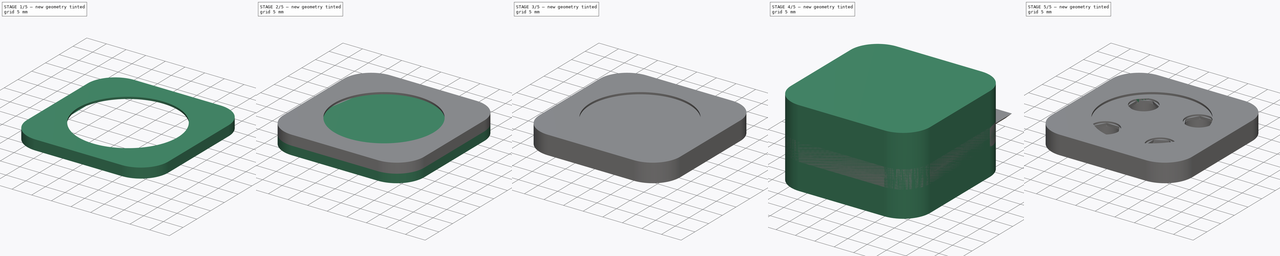
[diagram: build sequence overview — one tinted view per stage of 5, left to right]
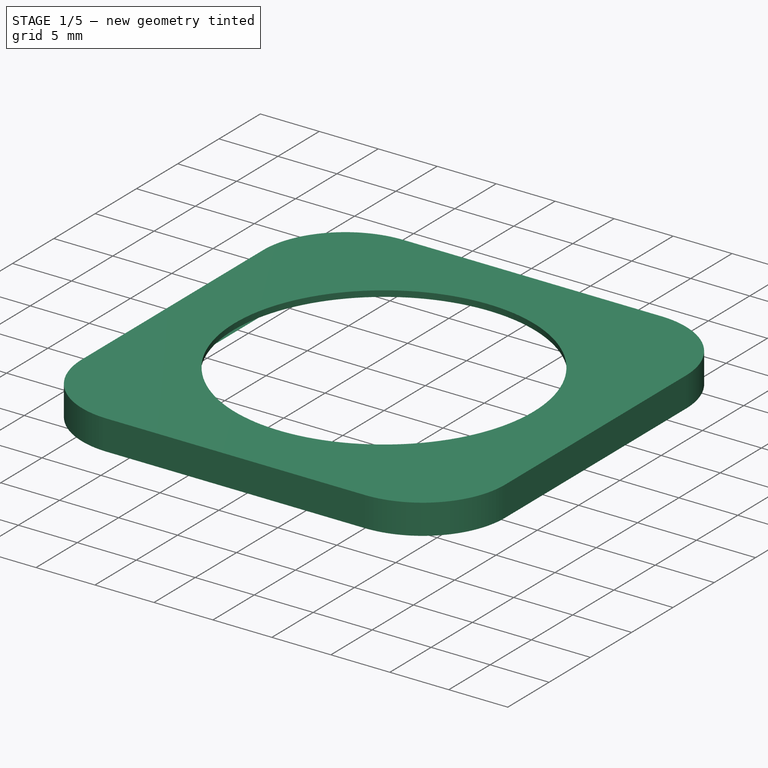
[diagram: stage 1 of 5 — iso view after this stage's code; geometry added in this stage tinted green]
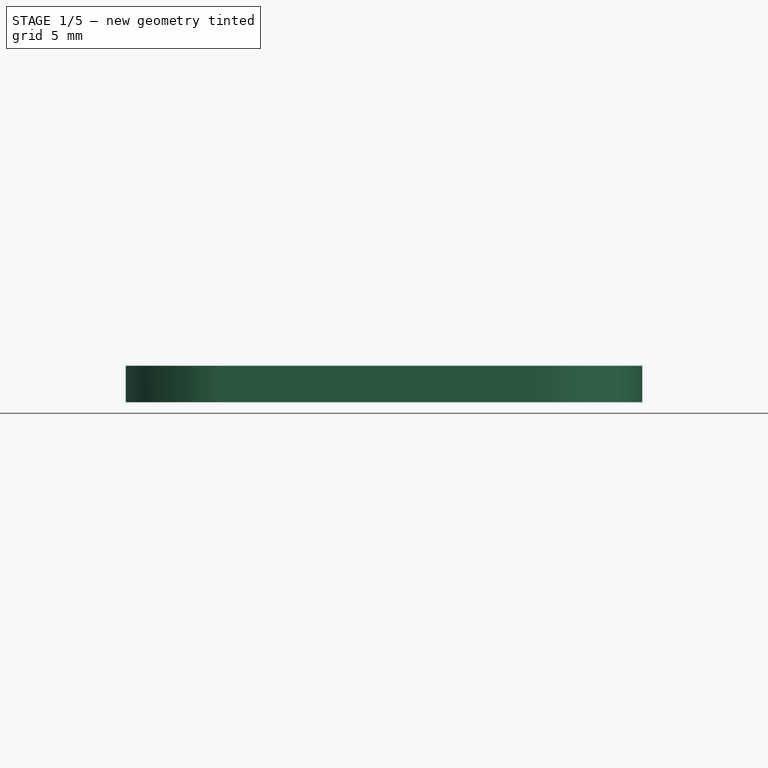
[diagram: stage 1 of 5 — front view after this stage's code; geometry added in this stage tinted green]
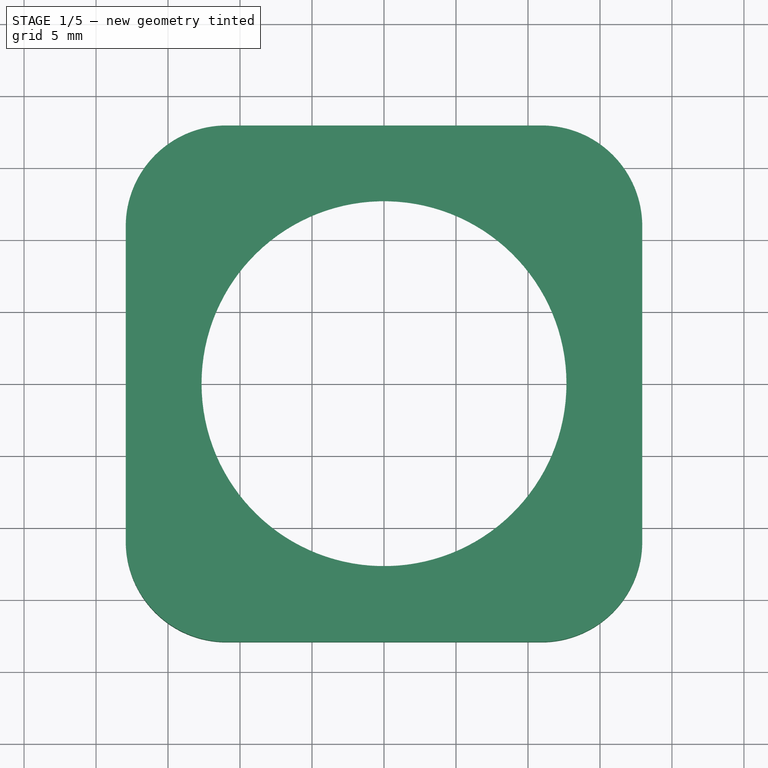
[diagram: stage 1 of 5 — top view after this stage's code; geometry added in this stage tinted green]
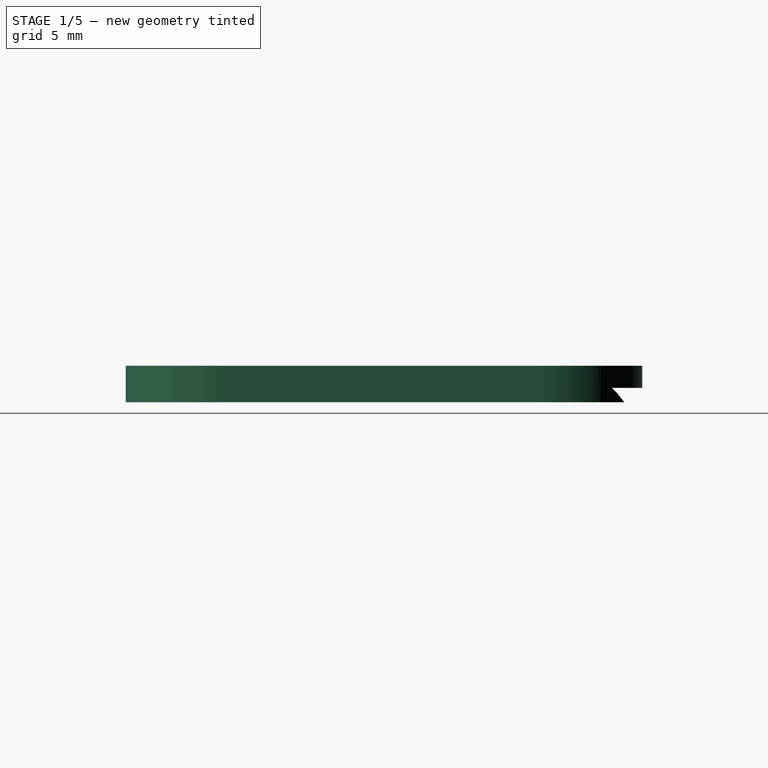
[diagram: stage 1 of 5 — right view after this stage's code; geometry added in this stage tinted green]
FCSTD DOCUMENT  (FreeCAD 1.0R39109 (Git))
Label: tiny-traffic-cone-bases
License: All rights reserved
LicenseURL: https://en.wikipedia.org/wiki/All_rights_reserved
objects: PartDesign::Body×9, Sketcher::SketchObject×8, PartDesign::Pad×5, PartDesign::Boolean×5, PartDesign::Pocket×5, PartDesign::FeatureBase×4, PartDesign::ShapeBinder×3, Part::Feature×1, Spreadsheet::Sheet×1, PartDesign::SubShapeBinder×1, PartDesign::PolarPattern×1
note: 80 computed .brp shape members not serialized (recipe doc carries the construction recipe); baked Part::Feature solids carry a one-line shape summary decoded from their .brp

FEATURE [PartDesign::Body] Body011  label="BaseOutline-Ref"
  AllowCompound = false
  Group = -> [Pad004,Sketch029]
  Origin = -> Origin004
  Tip = -> Pad004
FEATURE [PartDesign::ShapeBinder] ShapeBinder
  Support = -> [Sketch029]
  TraceSupport = false
FEATURE [PartDesign::Pad] Pad005
  Direction = (0,0,1)
  Length = 1.54
  Length2 = 1
  Profile = -> ShapeBinder
  Refine = true
  Suppressed = false
  Type = 4
  expr: Length = <<parameters>>.base_height - <<parameters>>.slide_height
  expr: Length2 = <<parameters>>.slide_height
FEATURE [PartDesign::Body] Body015  label="BaseInner-Stacking"
  AllowCompound = false
  Group = -> [Clone003,Boolean002]
  Origin = -> Origin008
  Tip = -> Boolean002
FEATURE [PartDesign::Pocket] Pocket
  BaseFeature = -> Pad005
  Direction = (0,0,-1)
  Length = 1.06
  Length2 = 5
  Profile = -> Sketch025
  ReferenceAxis = -> Sketch025 [N_Axis]
  Refine = true
  Suppressed = false
  TaperAngle = -45
  Type = 0
  expr: Length = <<parameters>>.slide_height + <<parameters>>.slide_fit
FEATURE [PartDesign::Body] Body018  label="BaseInner-Magnet-6x2"
  AllowCompound = false
  Group = -> [Binder,Pad009,Boolean004,Sketch,Pocket001,Sketch031,Pocket002,Sketch033,Pocket003,Sketch034,Pocket004,PolarPattern]
  Origin = -> Origin011
  Tip = -> PolarPattern
FEATURE [PartDesign::FeatureBase] Clone004
  BaseFeature = -> Body007
  Suppressed = false
FEATURE [PartDesign::Body] Body020
  AllowCompound = false
  Group = -> [Clone004]
  Origin = -> Origin013
  Tip = -> Clone004
FEATURE [PartDesign::Boolean] Boolean
  BaseFeature = -> Pocket
  Group = -> [Body020]
  Refine = true
  Suppressed = false
  Type = 1
  UsePlacement = true
FEATURE [PartDesign::Body] Body009  label="BaseOuter"
  AllowCompound = false
  Group = -> [ShapeBinder,Pad005,Sketch025,Pocket,Boolean]
  Origin = -> Origin002
  Tip = -> Boolean
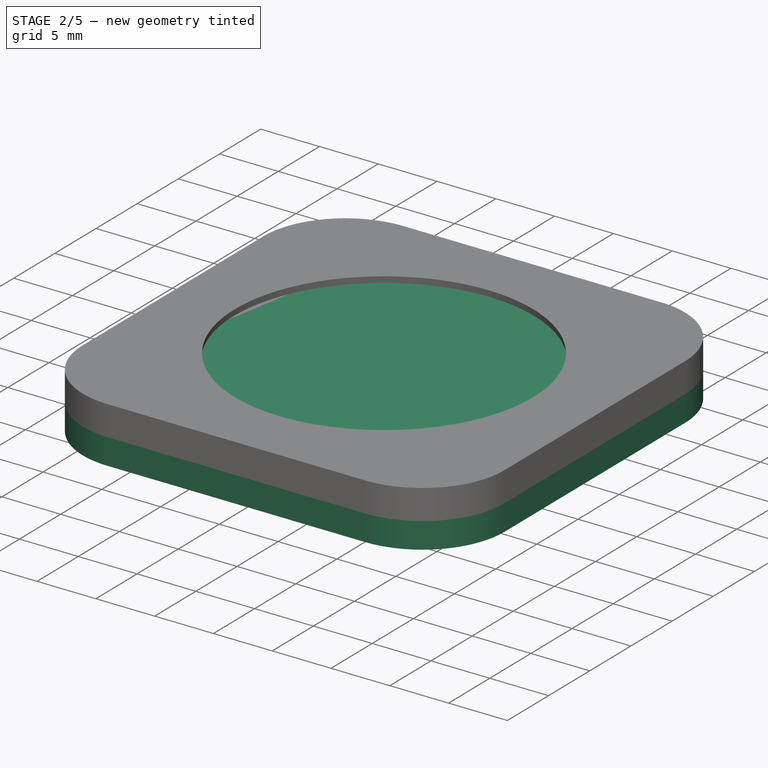
[diagram: stage 2 of 5 — iso view after this stage's code; geometry added in this stage tinted green]
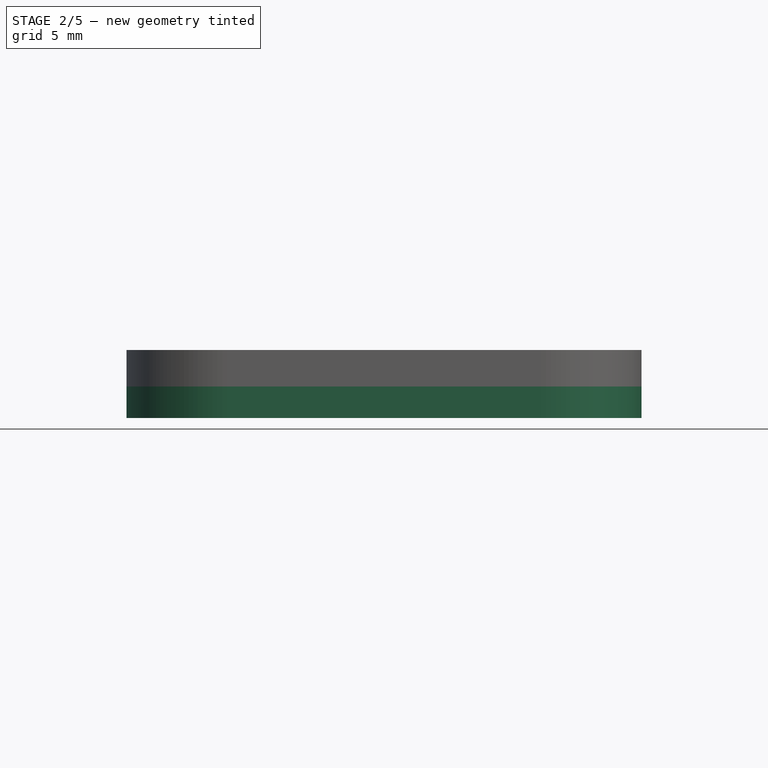
[diagram: stage 2 of 5 — front view after this stage's code; geometry added in this stage tinted green]
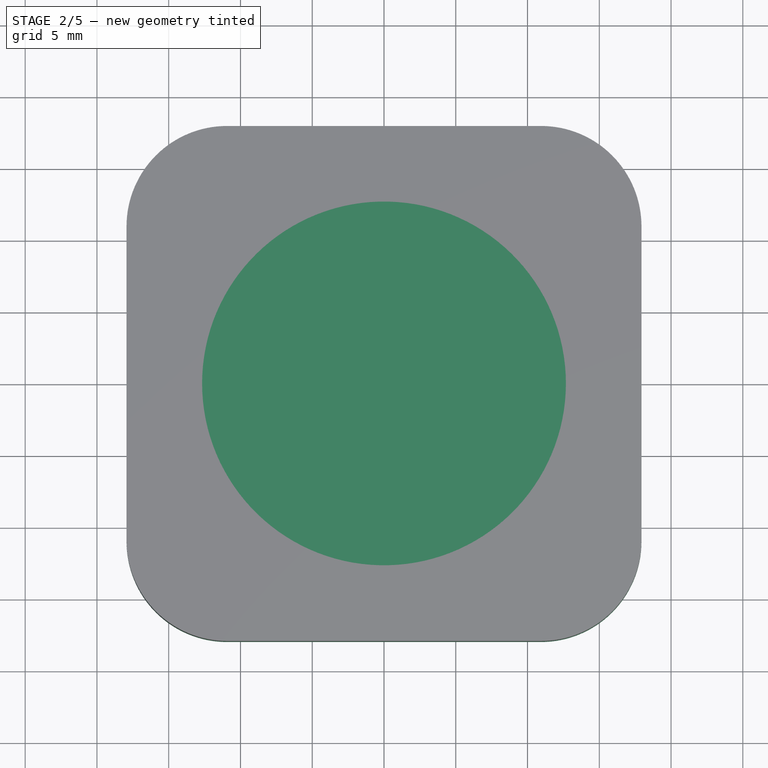
[diagram: stage 2 of 5 — top view after this stage's code; geometry added in this stage tinted green]
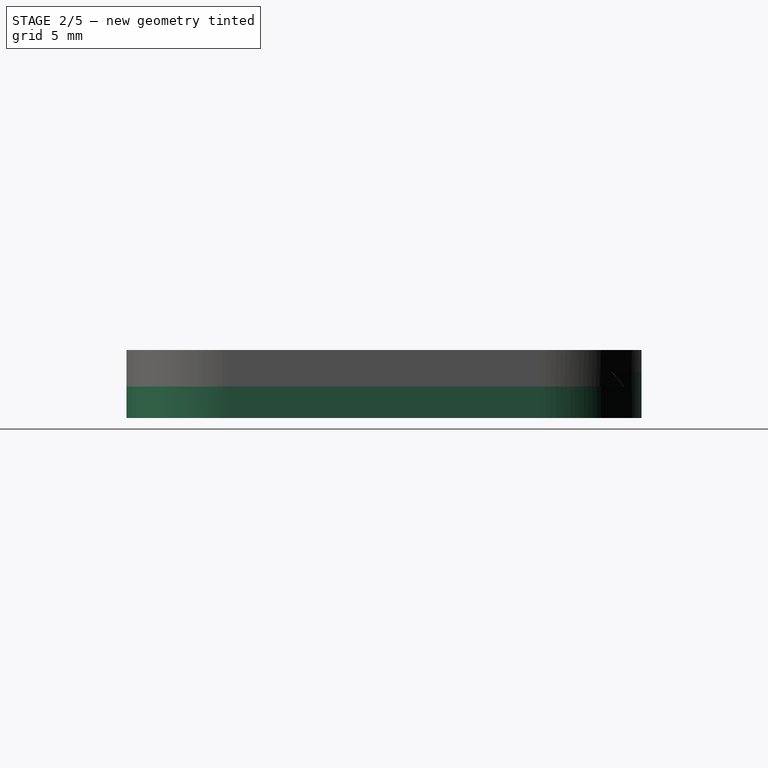
[diagram: stage 2 of 5 — right view after this stage's code; geometry added in this stage tinted green]
FEATURE [Part::Feature] Body007  label="BaseConeHole001"
  shape: bbox 30.43 x 30.43 x 76.12 mm, 14 faces (baked)
FEATURE [Spreadsheet::Sheet] Spreadsheet  label="parameters"
  cells = A1='fit values; B1='in mm; A2='base fit; B2(base_fit)=0.2; A3='slide fit; B3(slide_fit)=0.06; A5='printing; B5='in mm / deg; D5='ref; A6='cone base height; B6(cone_base_height)=0.8; A7='cone base width; B7(cone_base_width)=30; A8='base corner fillet; B8(base_corner_fillet)=7; A9='slide inner height; B9(slide_height)=1; A11='traffic cone; A12='base height; B12=1; C12(base_height)==B12 * 25.4 / 10; A13='base width; B13=14.125; C13(base_width)==B13 * 25.4 / 10; A15='base parameters; A16='penny thickness; B16(penny_thickness)=1.52; C16='ref; D16='https://www.usmint.gov/learn/coins-and-medals/circulating-coins/coin-specifications?srsltid=AfmBOoqPa8WdZfvSCUR2b_CkC8uXLPR4GtA1k-oykqEEjrXxY-uVOi0m; A17='penny diameter; B17(penny_diameter)=19.05; A18='penny fit; B18(penny_fit)=0.2; A19='penny count; B19(penny_count)=3; A21='magnet; B21='6x2
FEATURE [Sketcher::SketchObject] Sketch025
  ArcFitTolerance = 1e-06
  AttachmentSupport = -> [XY_Plane002]
  FullyConstrained = true
  MakeInternals = false
  MapMode = 5
  expr: Constraints[20] = <<parameters>>.base_width / 2 - 2
  sketch-geometry (8):
    g0: LineSegment StartX=15.9387 StartY=22 StartZ=0 EndX=15.9387 EndY=-10 EndZ=0
    g1: LineSegment StartX=15.9387 StartY=-10 StartZ=0 EndX=10 EndY=-15.9387 EndZ=0
    g2: LineSegment StartX=10 StartY=-15.9387 StartZ=0 EndX=-10 EndY=-15.9387 EndZ=0
    g3: LineSegment StartX=-10 StartY=-15.9387 StartZ=0 EndX=-15.9387 EndY=-10 EndZ=0
    g4: LineSegment StartX=-15.9387 StartY=-10 StartZ=0 EndX=-15.9387 EndY=22 EndZ=0
    g5: LineSegment StartX=-15.9387 StartY=22 StartZ=0 EndX=15.9387 EndY=22 EndZ=0
    g6: LineSegment [constr] StartX=0 StartY=0 StartZ=0 EndX=-15.9387 EndY=0 EndZ=0
    g7: LineSegment [constr] StartX=0 StartY=0 StartZ=0 EndX=0 EndY=-15.9387 EndZ=0
  constraints (23):
    c: Vertical(g0)
    c: Coincident(g1,g0)
    c: Coincident(g2,g1)
    c: Horizontal(g2)
    c: Coincident(g3,g2)
    c: Coincident(g4,g3)
    c: Vertical(g4)
    c: Coincident(g5,g4)
    c: Coincident(g5,g0)
    c: Symmetric(g4,g0,g-2)
    c: Coincident(g6,g-1)
    c: PointOnObject(g6,g4)
    c: Horizontal(g6)
    c: Coincident(g7,g6)
    c: PointOnObject(g7,g2)
    c: Vertical(g7)
    c: Equal(g6,g7)
    c: Perpendicular(g3,g1)
    c: Angle(g-1,g1) = 0.785398
    c: Equal(g1,g3)
    c: DistanceX(g0) = 15.9387
    c: DistanceY(g0) = 22
    c: DistanceX(g7,g1) = 10
FEATURE [PartDesign::ShapeBinder] ShapeBinder007
  Support = -> [Sketch025]
  TraceSupport = false
FEATURE [Sketcher::SketchObject] Sketch028
  ArcFitTolerance = 1e-06
  AttachmentSupport = -> [XY_Plane003]
  ExternalGeometry = -> [ShapeBinder007]
  FullyConstrained = true
  MakeInternals = false
  MapMode = 5
  expr: Constraints[17] = <<parameters>>.slide_fit
  sketch-geometry (8):
    g0: LineSegment StartX=-15.8787 StartY=22 StartZ=0 EndX=-15.8787 EndY=-9.96236 EndZ=0
    g1: LineSegment StartX=-15.8787 StartY=-9.96236 StartZ=0 EndX=-9.96236 EndY=-15.8787 EndZ=0
    g2: LineSegment StartX=-9.96236 StartY=-15.8787 StartZ=0 EndX=9.96236 EndY=-15.8787 EndZ=0
    g3: LineSegment StartX=9.96236 StartY=-15.8787 StartZ=0 EndX=15.8787 EndY=-9.96236 EndZ=0
    g4: LineSegment StartX=15.8787 StartY=-9.96236 StartZ=0 EndX=15.8787 EndY=22 EndZ=0
    g5: LineSegment [constr] StartX=0 StartY=0 StartZ=0 EndX=-15.9388 EndY=-10 EndZ=0
    g6: LineSegment [constr] StartX=0 StartY=0 StartZ=0 EndX=-10 EndY=-15.9387 EndZ=0
    g7: LineSegment StartX=-15.8787 StartY=22 StartZ=0 EndX=15.8787 EndY=22 EndZ=0
  constraints (21):
    c: PointOnObject(g0,g-3)
    c: Vertical(g0)
    c: Coincident(g1,g0)
    c: Coincident(g2,g1)
    c: Horizontal(g2)
    c: Coincident(g3,g2)
    c: Coincident(g4,g3)
    c: Vertical(g4)
    c: Equal(g0,g4)
    c: Parallel(g-7,g1)
    c: Parallel(g-5,g3)
    c: Symmetric(g4,g0,g-2)
    c: Coincident(g5,g-1)
    c: Coincident(g6,g5)
    c: Coincident(g6,g-7)
    c: PointOnObject(g1,g6)
    c: PointOnObject(g0,g5)
    c: DistanceX(g-8,g0) = 0.06
    c: Coincident(g5,g-8)
    c: Coincident(g7,g0)
    c: Coincident(g7,g4)
FEATURE [Sketcher::SketchObject] Sketch029  label="BaseOutlineSketch"
  ArcFitTolerance = 1e-06
  AttachmentSupport = -> [XY_Plane004]
  FullyConstrained = true
  MakeInternals = false
  MapMode = 5
  expr: Constraints[24] = <<parameters>>.base_corner_fillet
  expr: Constraints[37] = <<parameters>>.base_width
  sketch-geometry (20):
    g0: LineSegment [constr] StartX=-10.9387 StartY=10.9387 StartZ=0 EndX=-10.9387 EndY=-10.9388 EndZ=0
    g1: LineSegment [constr] StartX=-10.9387 StartY=-10.9388 StartZ=0 EndX=10.9387 EndY=-10.9388 EndZ=0
    g2: LineSegment [constr] StartX=10.9387 StartY=-10.9388 StartZ=0 EndX=10.9387 EndY=10.9387 EndZ=0
    g3: LineSegment [constr] StartX=10.9387 StartY=10.9387 StartZ=0 EndX=-10.9387 EndY=10.9387 EndZ=0
    g4: LineSegment [constr] StartX=-10.9387 StartY=10.9387 StartZ=0 EndX=-10.9387 EndY=17.9387 EndZ=0
    g5: LineSegment [constr] StartX=-10.9387 StartY=10.9387 StartZ=0 EndX=-17.9387 EndY=10.9387 EndZ=0
    g6: LineSegment [constr] StartX=10.9387 StartY=10.9387 StartZ=0 EndX=10.9387 EndY=17.9387 EndZ=0
    g7: LineSegment [constr] StartX=10.9387 StartY=10.9387 StartZ=0 EndX=17.9387 EndY=10.9387 EndZ=0
    g8: LineSegment [constr] StartX=-10.9387 StartY=-10.9388 StartZ=0 EndX=-17.9387 EndY=-10.9388 EndZ=0
    g9: LineSegment [constr] StartX=-10.9387 StartY=-10.9388 StartZ=0 EndX=-10.9387 EndY=-17.9388 EndZ=0
    g10: LineSegment [constr] StartX=10.9387 StartY=-10.9388 StartZ=0 EndX=10.9387 EndY=-17.9388 EndZ=0
    g11: LineSegment [constr] StartX=10.9387 StartY=-10.9388 StartZ=0 EndX=17.9387 EndY=-10.9388 EndZ=0
    g12: LineSegment StartX=-10.9387 StartY=17.9387 StartZ=0 EndX=10.9387 EndY=17.9387 EndZ=0
    g13: LineSegment StartX=-17.9387 StartY=10.9387 StartZ=0 EndX=-17.9387 EndY=-10.9388 EndZ=0
    g14: LineSegment StartX=-10.9387 StartY=-17.9388 StartZ=0 EndX=10.9387 EndY=-17.9388 EndZ=0
    g15: LineSegment StartX=17.9387 StartY=10.9387 StartZ=0 EndX=17.9387 EndY=-10.9388 EndZ=0
    g16: ArcOfCircle CenterX=-10.9387 CenterY=10.9387 CenterZ=0 NormalX=0 NormalY=0 NormalZ=1 AngleXU=0 Radius=7 StartAngle=1.5708 EndAngle=3.14159
    g17: ArcOfCircle CenterX=10.9387 CenterY=10.9387 CenterZ=0 NormalX=0 NormalY=0 NormalZ=1 AngleXU=0 Radius=7 StartAngle=0 EndAngle=1.5708
    g18: ArcOfCircle CenterX=10.9387 CenterY=-10.9388 CenterZ=0 NormalX=0 NormalY=0 NormalZ=1 AngleXU=0 Radius=7 StartAngle=4.71239 EndAngle=6.28319
    g19: ArcOfCircle CenterX=-10.9387 CenterY=-10.9388 CenterZ=0 NormalX=0 NormalY=0 NormalZ=1 AngleXU=0 Radius=7 StartAngle=3.14159 EndAngle=4.71239
  constraints (51):
    c: Coincident(g0,g1)
    c: Coincident(g1,g2)
    c: Coincident(g2,g3)
    c: Coincident(g3,g0)
    c: Vertical(g0)
    c: Vertical(g2)
    c: Horizontal(g1)
    c: Horizontal(g3)
    c: Coincident(g4,g0)
    c: Vertical(g4)
    c: Coincident(g5,g0)
    c: Horizontal(g5)
    c: Coincident(g6,g2)
    c: Coincident(g7,g2)
    c: Horizontal(g7)
    c: Vertical(g6)
    c: Coincident(g8,g0)
    c: Horizontal(g8)
    c: Coincident(g9,g0)
    c: Vertical(g9)
    c: Coincident(g10,g1)
    c: Vertical(g10)
    c: Coincident(g11,g1)
    c: Horizontal(g11)
    c: DistanceX(g8,g8) = 7
    c: Coincident(g12,g4)
    c: Coincident(g12,g6)
    c: Horizontal(g12)
    c: Coincident(g13,g5)
    c: Coincident(g13,g8)
    c: Vertical(g13)
    c: Coincident(g14,g9)
    c: Coincident(g14,g10)
    c: Coincident(g15,g7)
    c: Coincident(g15,g11)
    c: Vertical(g15)
    c: Equal(g14,g15)
    c: DistanceY(g9,g4) = 35.8775
    c: Symmetric(g8,g7,g-1)
    c: Coincident(g18,g1)
    c: Coincident(g18,g11)
    c: Coincident(g18,g10)
    c: Coincident(g8,g19)
    c: Coincident(g9,g19)
    c: Coincident(g5,g16)
    c: Coincident(g4,g16)
    c: Coincident(g6,g17)
    c: Coincident(g7,g17)
    c: Coincident(g2,g17)
    c: Coincident(g0,g19)
    c: Coincident(g0,g16)
FEATURE [PartDesign::Pad] Pad004
  Direction = (0,0,1)
  Length = 10
  Length2 = 10
  Profile = -> Sketch029
  ReferenceAxis = -> Sketch029 [N_Axis]
  Refine = true
  Suppressed = false
  Type = 4
FEATURE [PartDesign::SubShapeBinder] Binder  label="Binder-BaseOutline"
  BindCopyOnChange = 0
  BindMode = 0
  ClaimChildren = false
  Context = -> Body018 [Binder.]
  Fuse = false
  MakeFace = true
  OffsetFill = false
  OffsetIntersection = false
  OffsetJoinType = 0
  OffsetOpenResult = false
  PartialLoad = false
  Placement = pos=(0,0,-1) rot=(0,0,1;0rad)
  Refine = true
  Relative = true
  Support = -> [Body011[Sketch029.]]
  _Version = 2
FEATURE [PartDesign::Pad] Pad009
  Direction = (0,0,1)
  Length = 2.2
  Length2 = 10
  Placement = pos=(0,0,-1) rot=(0,0,1;0rad)
  Profile = -> Binder
  Refine = true
  Reversed = true
  Suppressed = false
  Type = 0
FEATURE [Sketcher::SketchObject] Sketch
  ArcFitTolerance = 1e-06
  AttachmentSupport = -> [Pad009]
  FullyConstrained = true
  MakeInternals = false
  MapMode = 5
  Placement = pos=(0,0,-3.2) rot=(1,0,0;3.14159rad)
  sketch-geometry (3):
    g0: Circle CenterX=-7 CenterY=7 CenterZ=0 NormalX=0 NormalY=0 NormalZ=1 AngleXU=0 Radius=1
    g1: LineSegment [constr] StartX=-7 StartY=7 StartZ=0 EndX=-7 EndY=0 EndZ=0
    g2: LineSegment [constr] StartX=-7 StartY=7 StartZ=0 EndX=0 EndY=7 EndZ=0
  constraints (9):
    c: Diameter(g0) = 2
    c: Coincident(g1,g0)
    c: PointOnObject(g1,g-1)
    c: Vertical(g1)
    c: Coincident(g2,g0)
    c: PointOnObject(g2,g-2)
    c: Horizontal(g2)
    c: Equal(g2,g1)
    c: Distance(g0,g1) = 7
FEATURE [PartDesign::ShapeBinder] ShapeBinder008
  Support = -> [Sketch025]
  TraceSupport = false
FEATURE [Sketcher::SketchObject] Sketch032
  ArcFitTolerance = 1e-06
  AttachmentSupport = -> [XY_Plane003]
  ExternalGeometry = -> [ShapeBinder008]
  FullyConstrained = true
  MakeInternals = false
  MapMode = 5
  expr: Constraints[17] = <<parameters>>.slide_fit
  sketch-geometry (8):
    g0: LineSegment StartX=-15.8787 StartY=22 StartZ=0 EndX=-15.8787 EndY=-9.96236 EndZ=0
    g1: LineSegment StartX=-15.8787 StartY=-9.96236 StartZ=0 EndX=-9.96236 EndY=-15.8787 EndZ=0
    g2: LineSegment StartX=-9.96236 StartY=-15.8787 StartZ=0 EndX=9.96236 EndY=-15.8787 EndZ=0
    g3: LineSegment StartX=9.96236 StartY=-15.8787 StartZ=0 EndX=15.8787 EndY=-9.96236 EndZ=0
    g4: LineSegment StartX=15.8787 StartY=-9.96236 StartZ=0 EndX=15.8787 EndY=22 EndZ=0
    g5: LineSegment [constr] StartX=0 StartY=0 StartZ=0 EndX=-15.9388 EndY=-10 EndZ=0
    g6: LineSegment [constr] StartX=0 StartY=0 StartZ=0 EndX=-10 EndY=-15.9387 EndZ=0
    g7: LineSegment StartX=-15.8787 StartY=22 StartZ=0 EndX=15.8787 EndY=22 EndZ=0
  constraints (21):
    c: PointOnObject(g0,g-3)
    c: Vertical(g0)
    c: Coincident(g1,g0)
    c: Coincident(g2,g1)
    c: Horizontal(g2)
    c: Coincident(g3,g2)
    c: Coincident(g4,g3)
    c: Vertical(g4)
    c: Equal(g0,g4)
    c: Parallel(g-7,g1)
    c: Parallel(g-5,g3)
    c: Symmetric(g4,g0,g-2)
    c: Coincident(g5,g-1)
    c: Coincident(g6,g5)
    c: Coincident(g6,g-7)
    c: PointOnObject(g1,g6)
    c: PointOnObject(g0,g5)
    c: DistanceX(g-8,g0) = 0.06
    c: Coincident(g5,g-8)
    c: Coincident(g7,g0)
    c: Coincident(g7,g4)
FEATURE [PartDesign::Pad] Pad010
  Direction = (0,0,1)
  Length = 1
  Length2 = 10
  Profile = -> Sketch032
  ReferenceAxis = -> Sketch032 [N_Axis]
  Refine = true
  Reversed = true
  Suppressed = false
  TaperAngle = -45
  Type = 0
  expr: Length = <<parameters>>.slide_height
FEATURE [PartDesign::Boolean] Boolean003
  BaseFeature = -> Pad010
  Refine = true
  Suppressed = false
  Type = 2
  UsePlacement = true
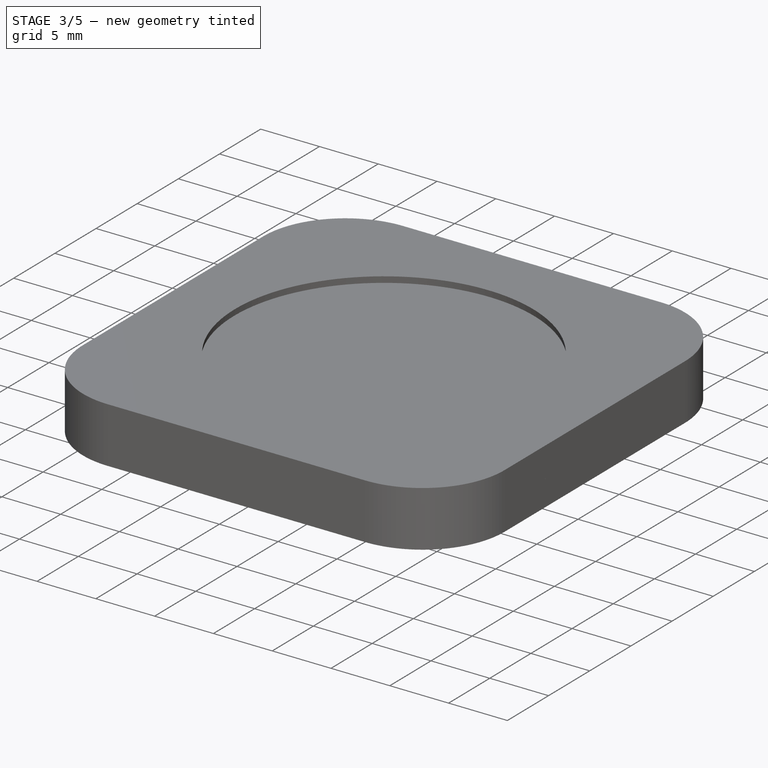
[diagram: stage 3 of 5 — iso view after this stage's code; geometry added in this stage tinted green]
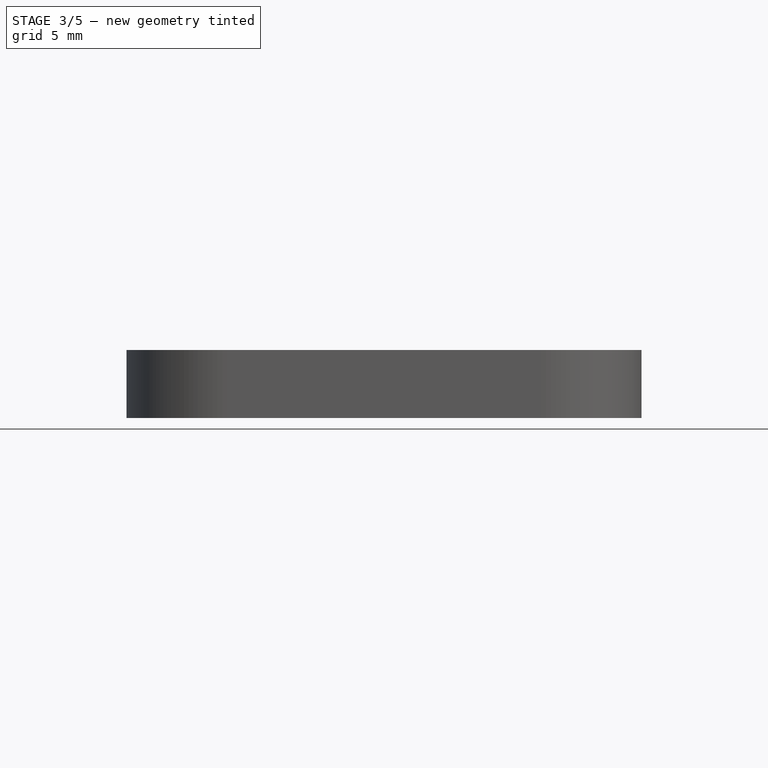
[diagram: stage 3 of 5 — front view after this stage's code; geometry added in this stage tinted green]
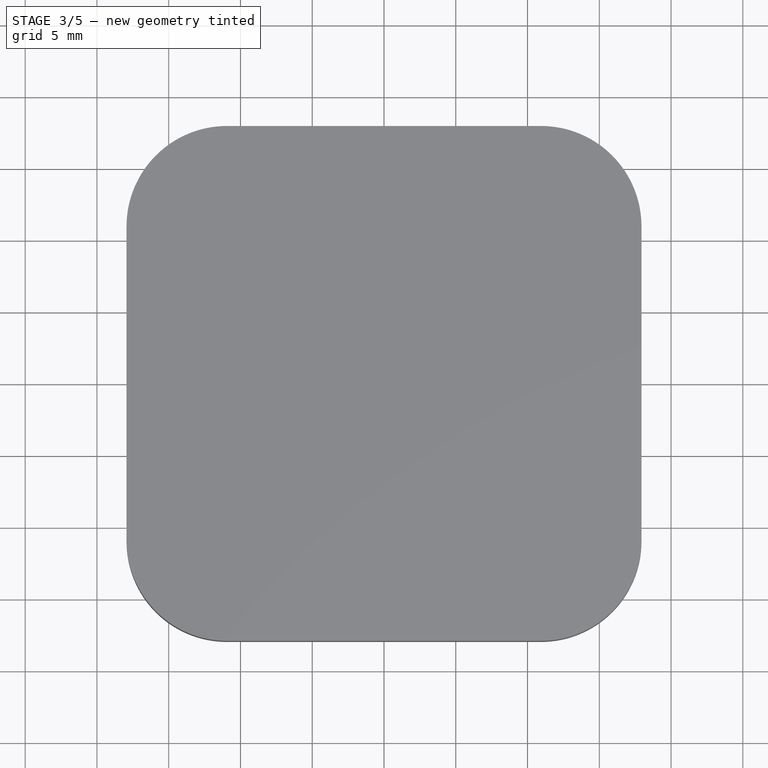
[diagram: stage 3 of 5 — top view after this stage's code; geometry added in this stage tinted green]
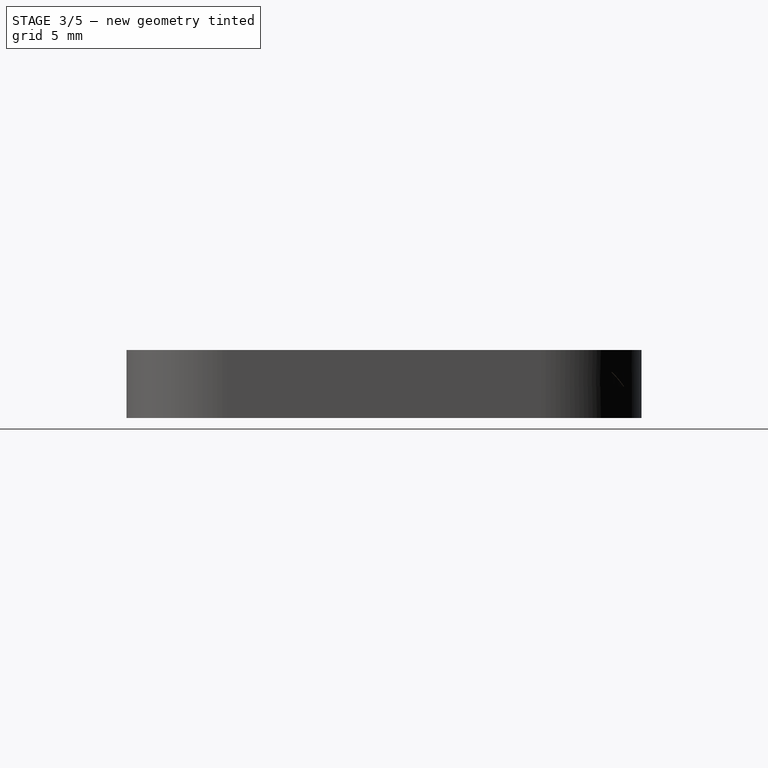
[diagram: stage 3 of 5 — right view after this stage's code; geometry added in this stage tinted green]
FEATURE [PartDesign::Body] Body019  label="BaseInner-Base001"
  AllowCompound = false
  Group = -> [ShapeBinder008,Sketch032,Pad010,Boolean003]
  Origin = -> Origin012
  Tip = -> Boolean003
FEATURE [PartDesign::Boolean] Boolean004
  BaseFeature = -> Pad009
  Group = -> [Body019]
  Refine = true
  Suppressed = false
  Type = 0
  UsePlacement = true
FEATURE [PartDesign::Pocket] Pocket001  label="bottomhole"
  BaseFeature = -> Boolean004
  Direction = (0,0,1)
  Length = 0.2
  Length2 = 5
  Profile = -> Sketch
  ReferenceAxis = -> Sketch [N_Axis]
  Refine = true
  Suppressed = false
  Type = 0
FEATURE [Sketcher::SketchObject] Sketch031
  ArcFitTolerance = 1e-06
  AttachmentSupport = -> [Pocket001]
  FullyConstrained = true
  MakeInternals = false
  MapMode = 5
  Placement = pos=(0,0,-3) rot=(1,0,0;3.14159rad)
  sketch-geometry (1):
    g0: Circle CenterX=-7 CenterY=7 CenterZ=0 NormalX=0 NormalY=0 NormalZ=1 AngleXU=0 Radius=3.15
  constraints (2):
    c: Coincident(g0,g-3)
    c: Diameter(g0) = 6.3
FEATURE [PartDesign::Pocket] Pocket002  label="magnethole001"
  BaseFeature = -> Pocket001
  Direction = (0,0,1)
  Length = 2
  Length2 = 5
  Profile = -> Sketch031
  ReferenceAxis = -> Sketch031 [N_Axis]
  Refine = true
  Suppressed = false
  Type = 0
FEATURE [Sketcher::SketchObject] Sketch033
  ArcFitTolerance = 1e-06
  AttachmentSupport = -> [Pocket002]
  ExternalGeometry = -> [Sketch031]
  FullyConstrained = true
  MakeInternals = false
  MapMode = 5
  Placement = pos=(0,0,-1) rot=(1,0,0;3.14159rad)
  sketch-geometry (7):
    g0: LineSegment StartX=-3.7091 StartY=7 StartZ=0 EndX=-5.35455 EndY=9.85 EndZ=0
    g1: LineSegment StartX=-5.35455 StartY=9.85 StartZ=0 EndX=-8.64545 EndY=9.85 EndZ=0
    g2: LineSegment StartX=-8.64545 StartY=9.85 StartZ=0 EndX=-10.2909 EndY=7 EndZ=0
    g3: LineSegment StartX=-10.2909 StartY=7 StartZ=0 EndX=-8.64545 EndY=4.15 EndZ=0
    g4: LineSegment StartX=-8.64545 StartY=4.15 StartZ=0 EndX=-5.35455 EndY=4.15 EndZ=0
    g5: LineSegment StartX=-5.35455 StartY=4.15 StartZ=0 EndX=-3.7091 EndY=7 EndZ=0
    g6: Circle [constr] CenterX=-7 CenterY=7 CenterZ=0 NormalX=0 NormalY=0 NormalZ=1 AngleXU=0 Radius=3.2909
  constraints (16):
    c: Coincident(g0,g1)
    c: Coincident(g1,g2)
    c: Coincident(g2,g3)
    c: Coincident(g3,g4)
    c: Coincident(g4,g5)
    c: Coincident(g5,g0)
    c: Equal(g0, g1-g5) x5
    c: PointOnObject(g0,g6)
    c: PointOnObject(g1,g6)
    c: PointOnObject(g2,g6)
    c: PointOnObject(g3,g6)
    c: PointOnObject(g4,g6)
    c: PointOnObject(g5,g6)
    c: Coincident(g6,g-3)
    c: Horizontal(g0,g6)
    c: Distance(g2,g0) = 5.7
FEATURE [PartDesign::Pocket] Pocket003  label="hexhole"
  BaseFeature = -> Pocket002
  Direction = (0,0,1)
  Length = 0.6
  Length2 = 5
  Profile = -> Sketch033
  ReferenceAxis = -> Sketch033 [N_Axis]
  Refine = true
  Suppressed = false
  Type = 0
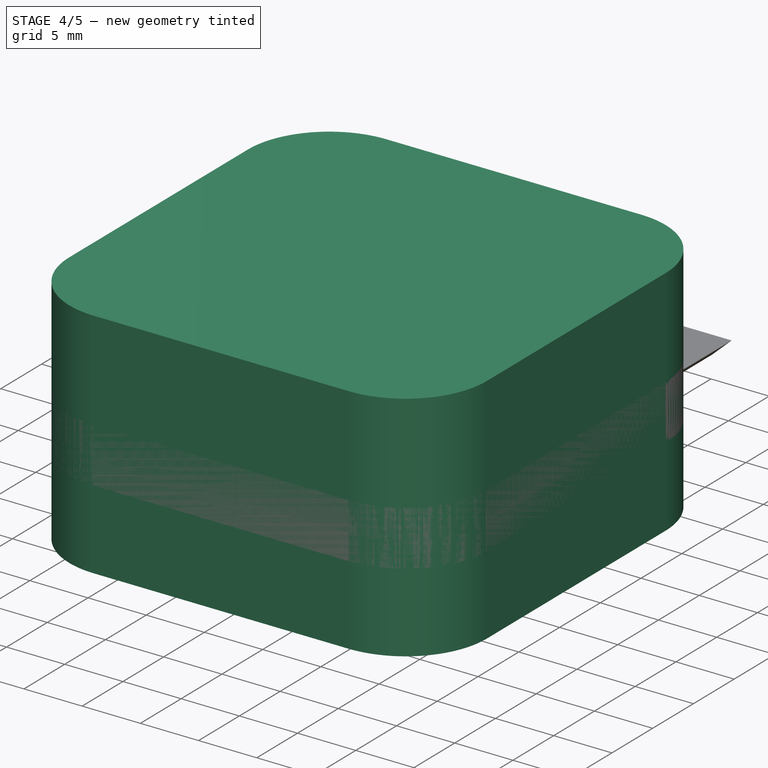
[diagram: stage 4 of 5 — iso view after this stage's code; geometry added in this stage tinted green]
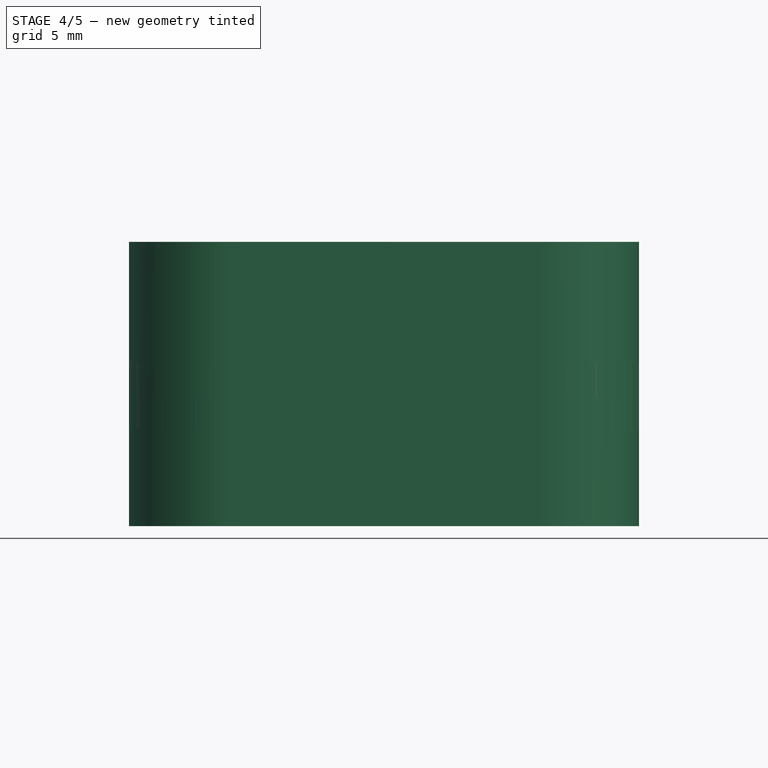
[diagram: stage 4 of 5 — front view after this stage's code; geometry added in this stage tinted green]
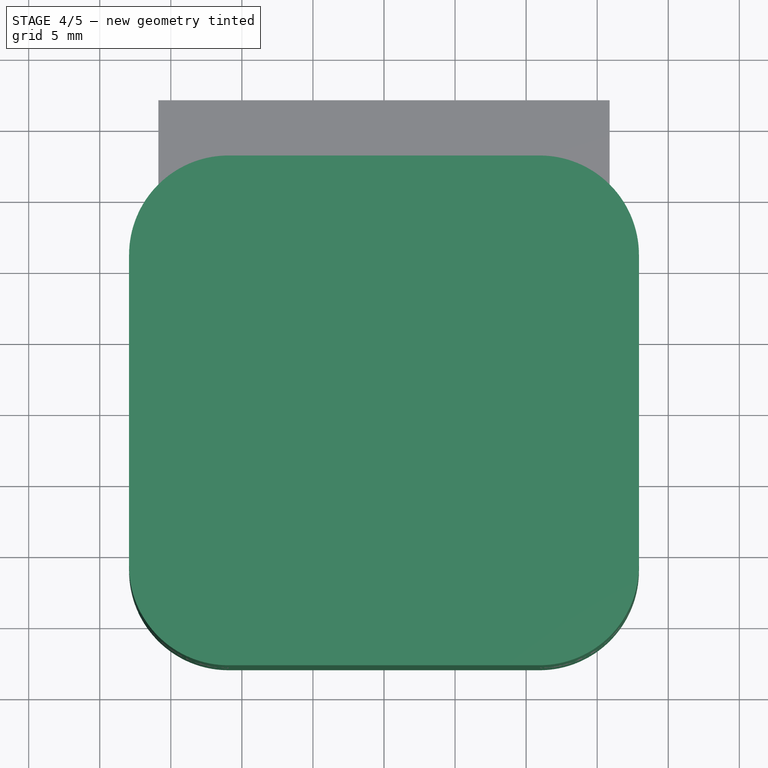
[diagram: stage 4 of 5 — top view after this stage's code; geometry added in this stage tinted green]
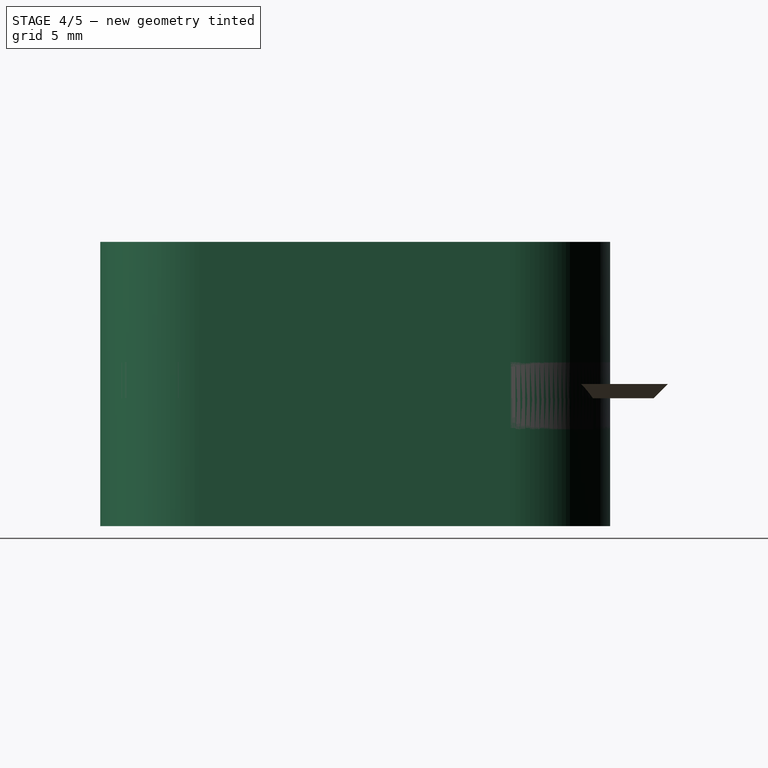
[diagram: stage 4 of 5 — right view after this stage's code; geometry added in this stage tinted green]
FEATURE [PartDesign::Pad] Pad006
  Direction = (0,0,1)
  Length = 1
  Length2 = 10
  Profile = -> Sketch028
  ReferenceAxis = -> Sketch028 [N_Axis]
  Refine = true
  Reversed = true
  Suppressed = false
  TaperAngle = -45
  Type = 0
  expr: Length = <<parameters>>.slide_height
FEATURE [PartDesign::FeatureBase] Clone001
  BaseFeature = -> Body011
  Suppressed = false
FEATURE [Sketcher::SketchObject] Sketch034
  ArcFitTolerance = 1e-06
  AttachmentSupport = -> [Pocket003]
  ExternalGeometry = -> [Sketch033,Sketch031]
  FullyConstrained = true
  MakeInternals = false
  MapMode = 5
  Placement = pos=(0,0,-0.4) rot=(1,0,0;3.14159rad)
  sketch-geometry (1):
    g0: Circle CenterX=-7 CenterY=7 CenterZ=0 NormalX=0 NormalY=0 NormalZ=1 AngleXU=0 Radius=3.2909
  constraints (2):
    c: Coincident(g0,g-4)
    c: PointOnObject(g-3,g0)
FEATURE [PartDesign::Pocket] Pocket004  label="entryhole"
  BaseFeature = -> Pocket003
  Direction = (0,0,1)
  Length = 0
  Length2 = 5
  Profile = -> Sketch034
  ReferenceAxis = -> Sketch034 [N_Axis]
  Refine = true
  Suppressed = false
  Type = 3
  UpToFace = -> Pocket003 [Face8]
FEATURE [PartDesign::PolarPattern] PolarPattern
  Angle = 360
  Axis = -> Sketch [N_Axis]
  BaseFeature = -> Pocket004
  Mode = 0
  Occurrences = 4
  Offset = 120
  Originals = -> [Pocket001,Pocket002,Pocket003,Pocket004]
  Refine = true
  Suppressed = false
  TransformMode = 0
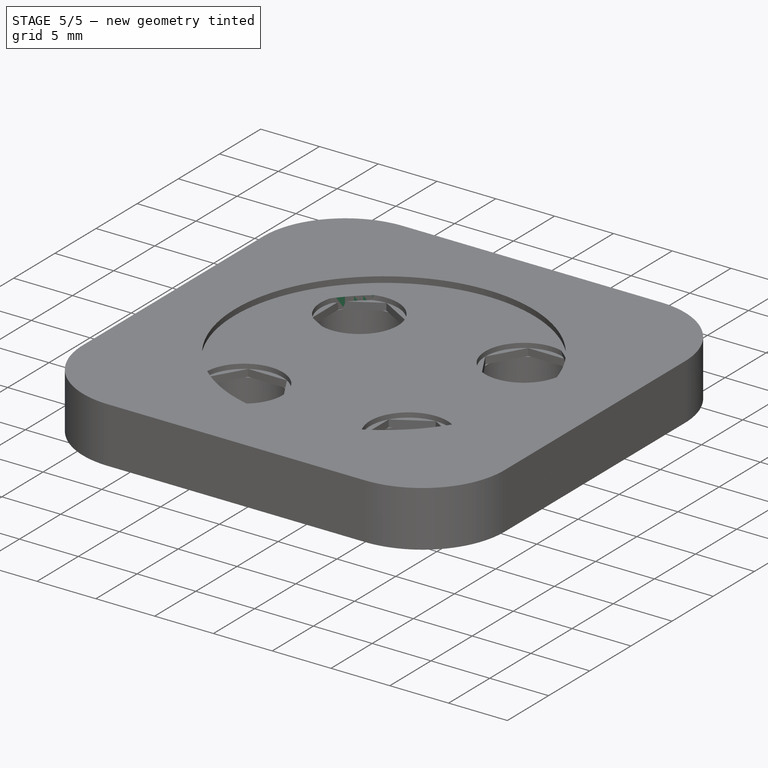
[diagram: stage 5 of 5 — iso view after this stage's code; geometry added in this stage tinted green]
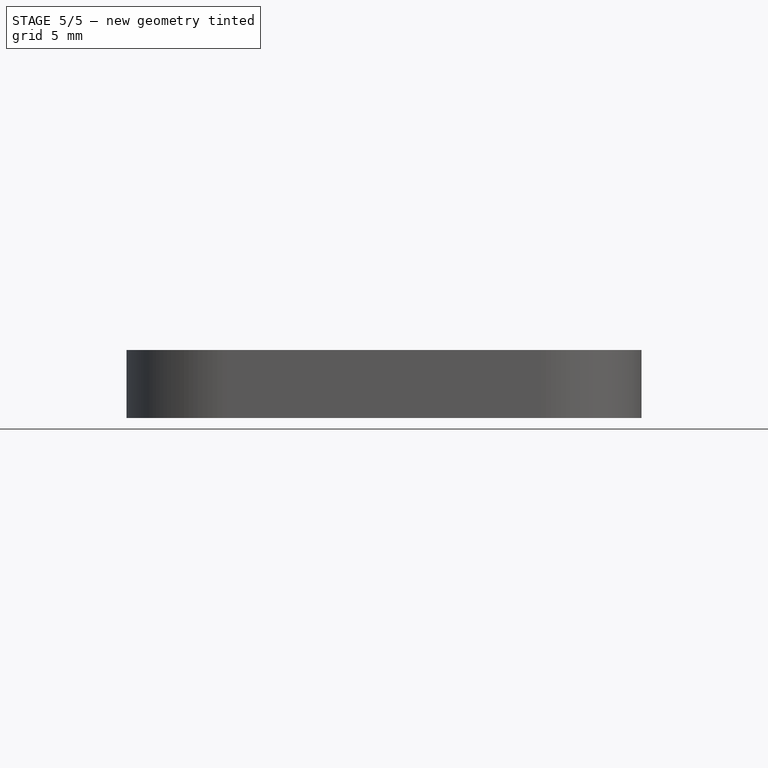
[diagram: stage 5 of 5 — front view after this stage's code; geometry added in this stage tinted green]
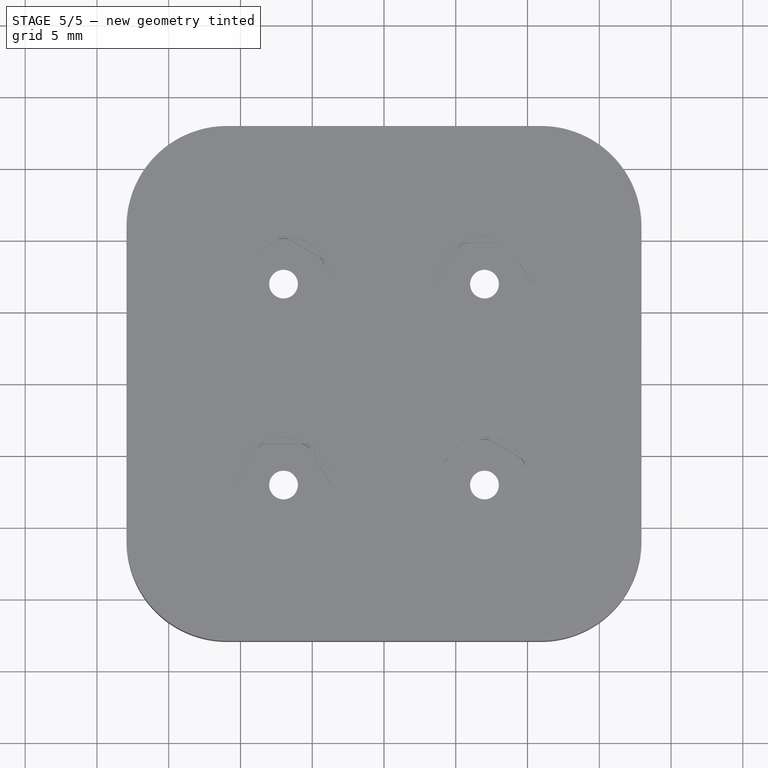
[diagram: stage 5 of 5 — top view after this stage's code; geometry added in this stage tinted green]
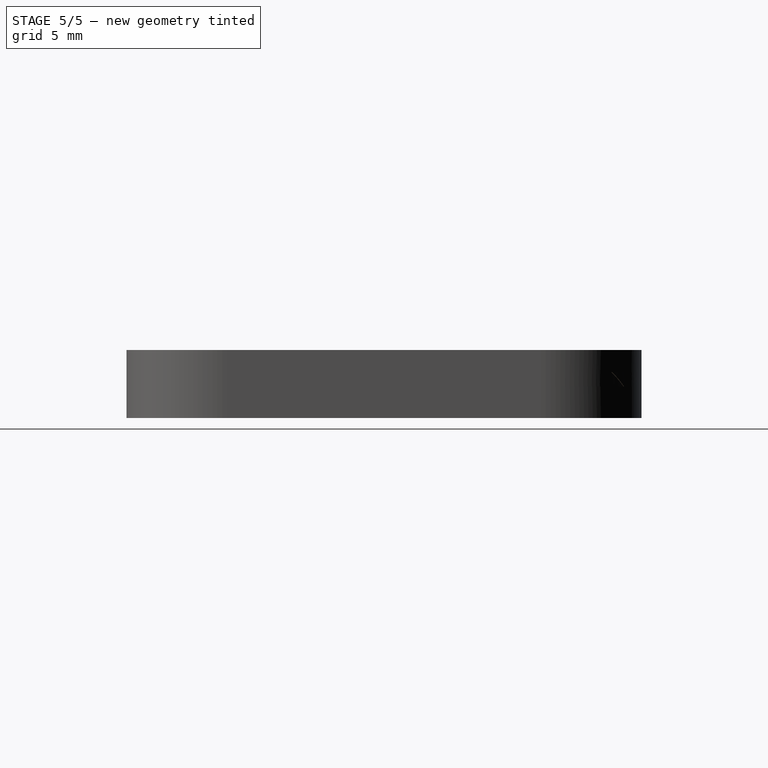
[diagram: stage 5 of 5 — right view after this stage's code; geometry added in this stage tinted green]
FEATURE [PartDesign::Body] Body012
  AllowCompound = false
  Group = -> [Clone001]
  Origin = -> Origin005
  Tip = -> Clone001
FEATURE [PartDesign::Boolean] Boolean001
  BaseFeature = -> Pad006
  Group = -> [Body012]
  Refine = true
  Suppressed = false
  Type = 2
  UsePlacement = true
FEATURE [PartDesign::Body] Body010  label="BaseInner-Base"
  AllowCompound = false
  Group = -> [ShapeBinder007,Sketch028,Pad006,Boolean001]
  Origin = -> Origin003
  Tip = -> Boolean001
FEATURE [PartDesign::FeatureBase] Clone002
  BaseFeature = -> Body007
  Suppressed = false
FEATURE [PartDesign::Body] Body013
  AllowCompound = false
  Group = -> [Clone002]
  Origin = -> Origin006
  Tip = -> Clone002
FEATURE [PartDesign::FeatureBase] Clone003
  BaseFeature = -> Body010
  Suppressed = false
FEATURE [PartDesign::Boolean] Boolean002
  BaseFeature = -> Clone003
  Group = -> [Body013]
  Refine = true
  Suppressed = false
  Type = 1
  UsePlacement = true
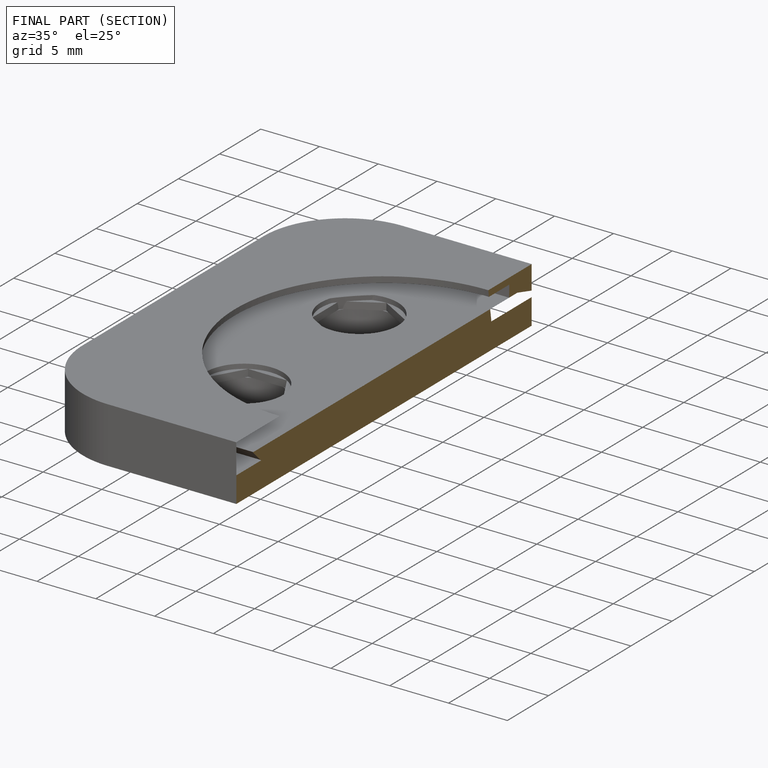
[diagram: finished part — half-section view (interior)]
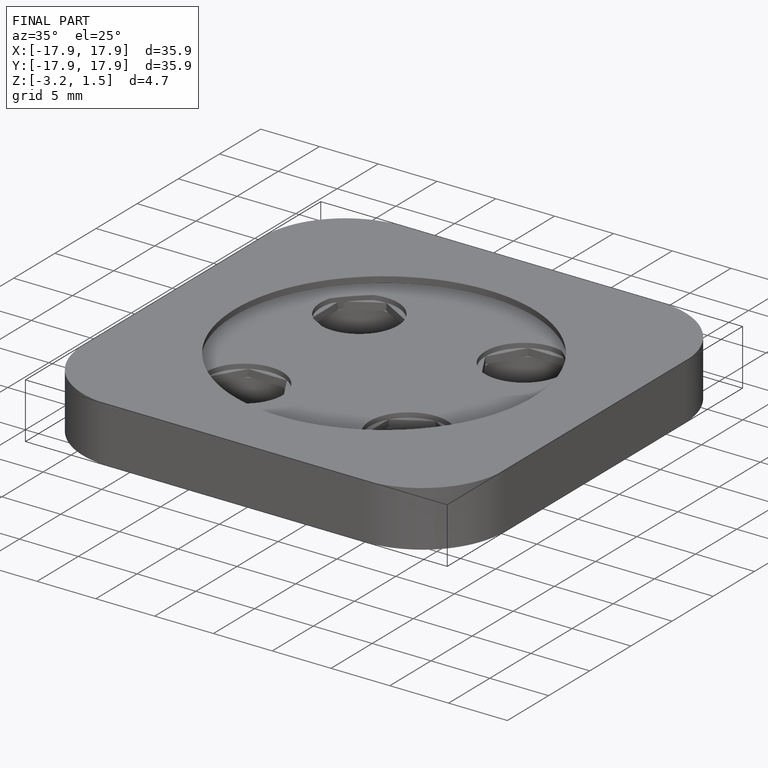
[diagram: finished part — iso view with bounding-box wireframe]
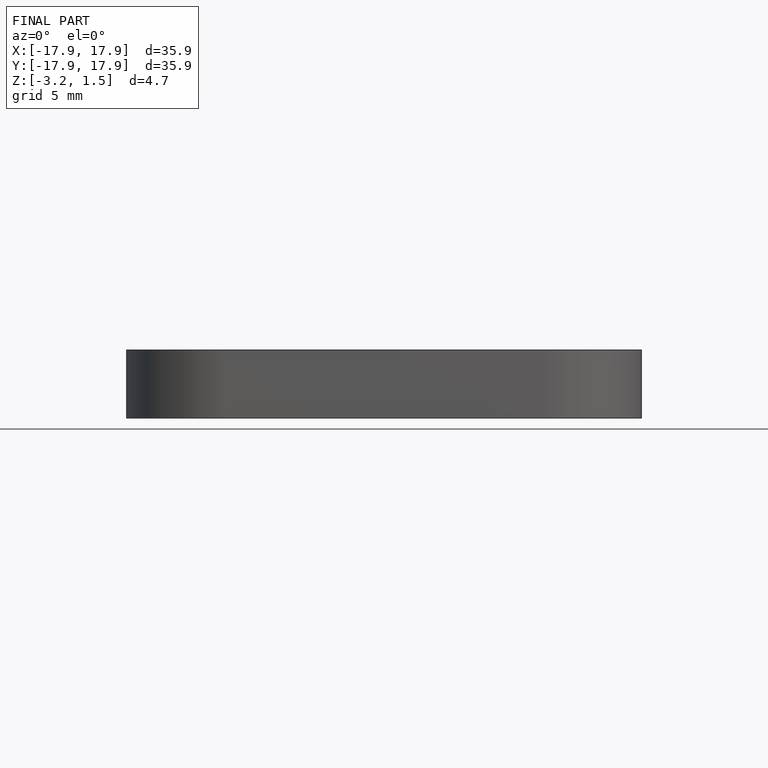
[diagram: finished part — front view with bounding-box wireframe]
